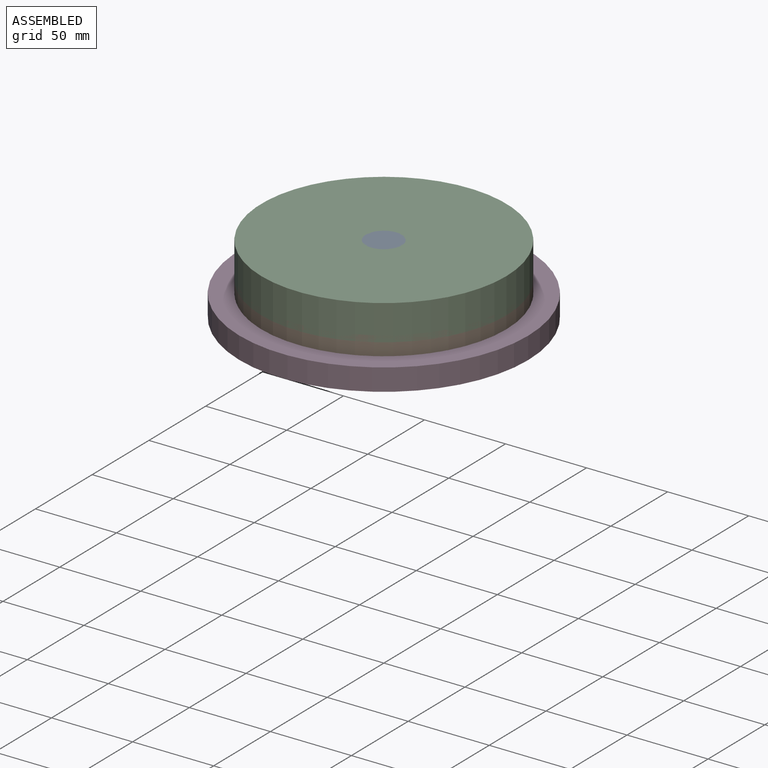
[diagram: assembled view]
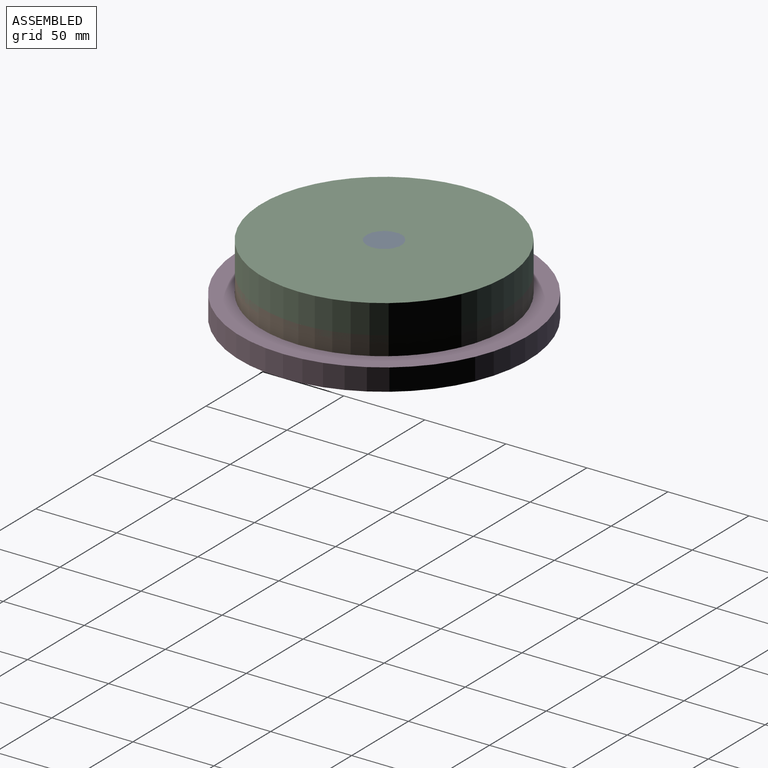
[diagram: assembled view, second angle]
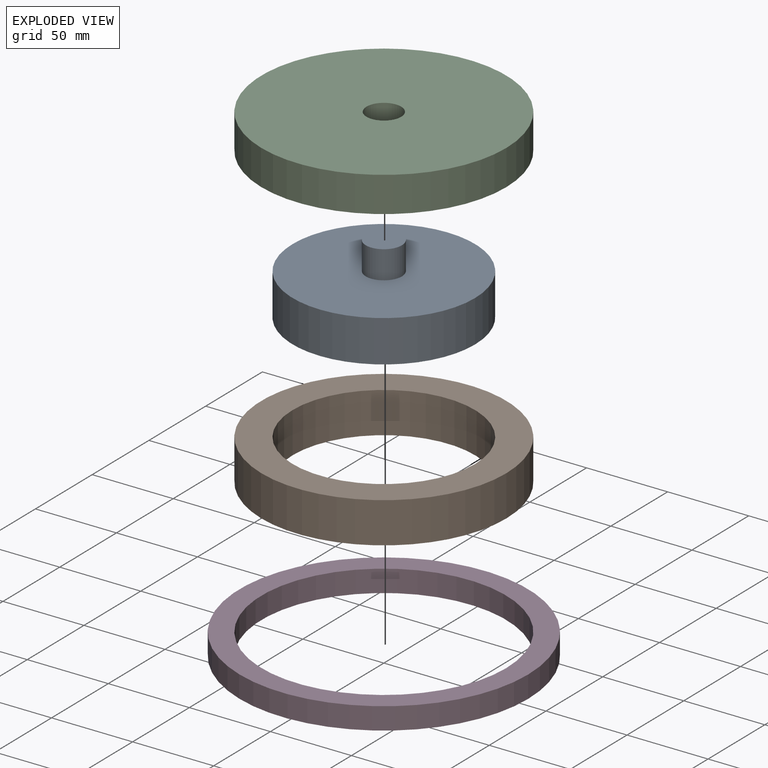
[diagram: exploded view]
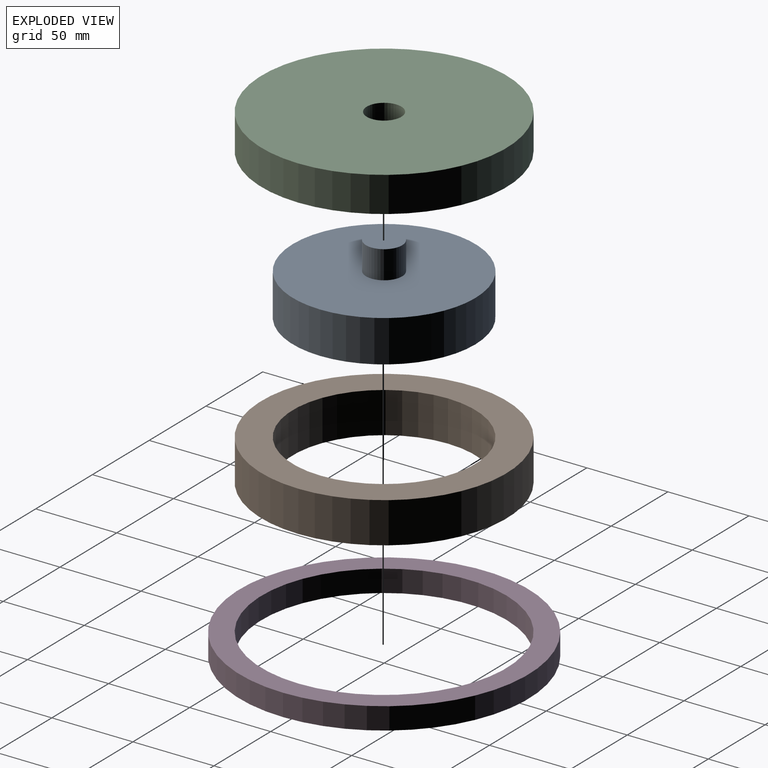
[diagram: exploded view, second angle]
ASSEMBLY  parts=4 mates=3
PART A: 5 faces, bbox 112.6x112.6x43.2 mm
  f0: cylinder r=56.3mm len=112.6mm, axis (0,0,-1), area 9146.7mm2, adj f1,f2
  f1: plane 112.6x112.6mm, normal (0,0,1), area 9568.7mm2, adj f0,f3
  f2: plane 112.6x112.6mm, normal (0,0,-1), area 9957.6mm2, adj f0
  f3: cylinder r=11.13mm len=22.25mm, axis (0,0,-1), area 1210.9mm2, adj f1,f4
  f4: plane 22.25x22.25mm, normal (0,0,1), area 388.8mm2, adj f3
PART B: 4 faces, bbox 151.1x151.1x25.2 mm
  f0: cylinder r=56.3mm len=112.6mm, axis (0,0,-1), area 8913.1mm2, adj f2,f3
  f1: cylinder r=75.56mm len=151.13mm, axis (0,0,-1), area 11963.2mm2, adj f2,f3
  f2: plane 151.13x151.13mm, normal (0,0,1), area 7981.2mm2, adj f0,f1
  f3: plane 151.13x151.13mm, normal (0,0,-1), area 7981.2mm2, adj f0,f1
PART C: 4 faces, bbox 151.1x151.1x21.8 mm
  f0: cylinder r=10.67mm len=21.84mm, axis (0,0,-1), area 1464.2mm2, adj f2,f3
  f1: cylinder r=75.56mm len=151.13mm, axis (0,0,-1), area 10371.3mm2, adj f2,f3
  f2: plane 151.13x151.13mm, normal (0,0,1), area 17581.2mm2, adj f0,f1
  f3: plane 151.13x151.13mm, normal (0,0,-1), area 17581.2mm2, adj f0,f1
PART D: 4 faces, bbox 178.1x178.1x13.6 mm
  f0: cylinder r=75.56mm len=151.13mm, axis (0,0,-1), area 6445.9mm2, adj f2,f3
  f1: cylinder r=89.03mm len=178.05mm, axis (0,0,-1), area 7594.2mm2, adj f2,f3
  f2: plane 178.05x178.05mm, normal (0,0,1), area 6960.9mm2, adj f0,f1
  f3: plane 178.05x178.05mm, normal (0,0,-1), area 6960.9mm2, adj f0,f1
PLACE A t=(0,0,-30.25)mm
PLACE B t=(0,0,-30.58)mm
PLACE C t=(0,0,-10.92)mm
PLACE D t=(0,0,-36.39)mm
MATE fastened B.f1 <-> A.f0  axis (0,0,-1) through (0,0,-43.18)mm
MATE fastened D.f1 <-> B.f1  axis (0,0,-1) through (0,0,-43.18)mm
MATE fastened C.f1 <-> A.f3  axis (0,0,1) through (0,0,0)mm
